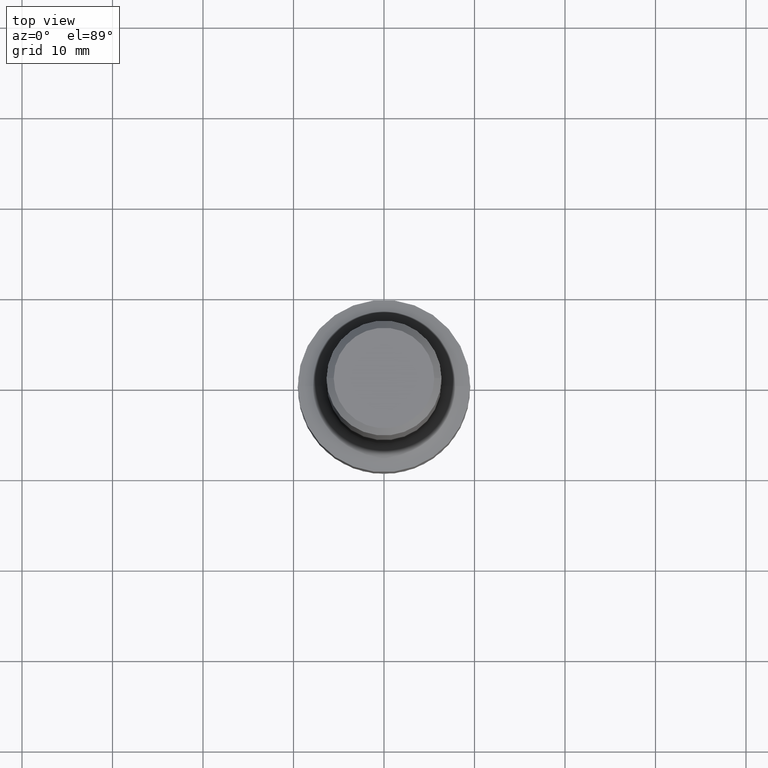
[diagram: clean part render]
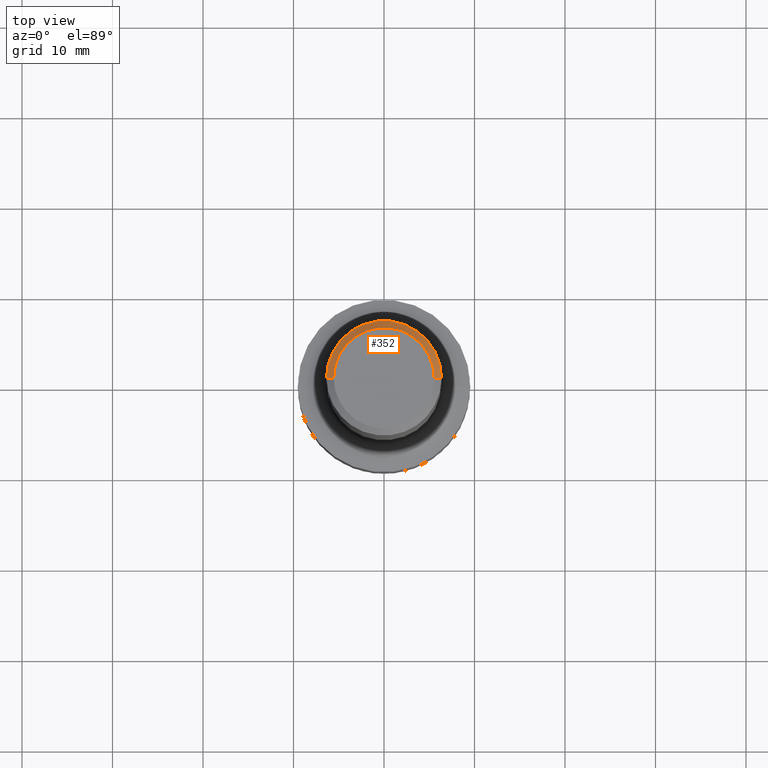
[diagram: same view with one face highlighted and labeled with its STEP entity id]
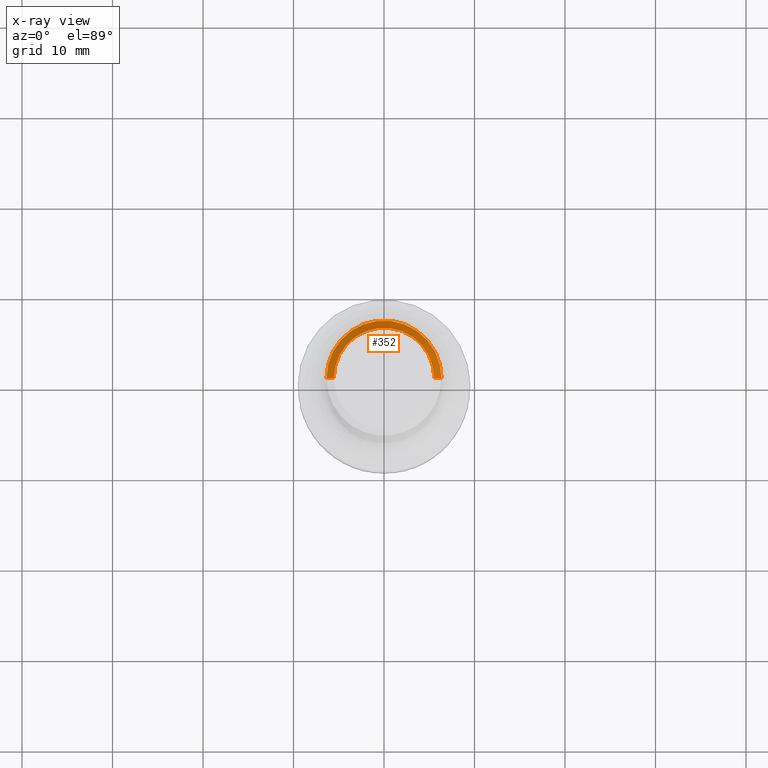
[diagram: x-ray of the same camera — body ghosted, the highlighted face saturated]
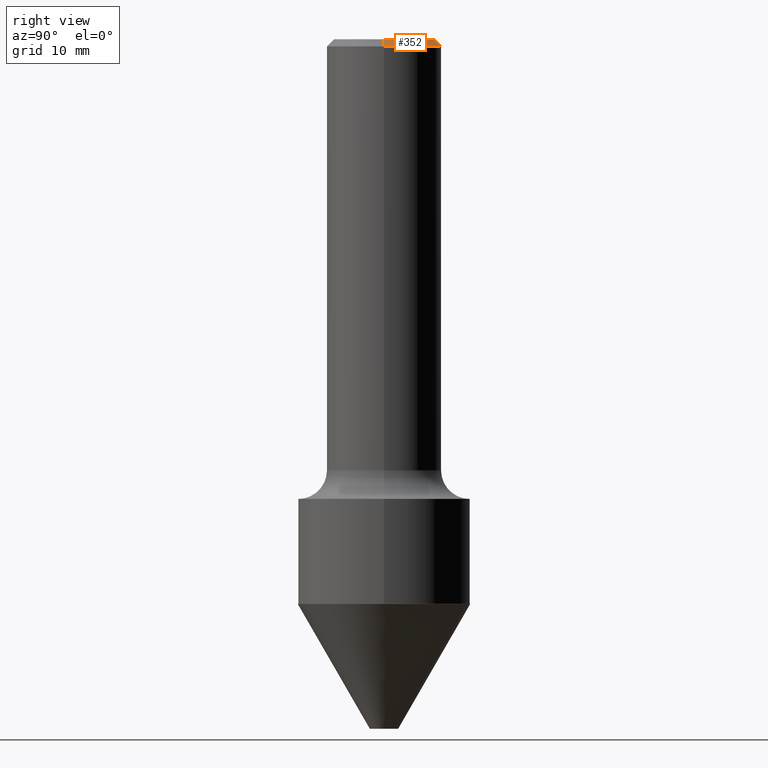
[diagram: same view with one face highlighted and labeled with its STEP entity id]
A machine part, top view. The second image highlights one B-rep face of the part: STEP entity #352.
The next image is the same camera in x-ray: the body ghosted, the highlighted face saturated — about 0% of this face is hidden behind the body in this view.
A second angle (right view) of the same face is appended — the face is thin or edge-on in the first view.
In plain terms, the highlighted conical surface has half-angle 45 deg.
Its self-contained STEP definition (entity closure, byte-faithful):
#2 = CARTESIAN_POINT ( 'NONE',  ( 7.629862675297676574E-31, -1.089342177719068640E-16, -0.03120000000000020673 ) ) ;
#8 = DIRECTION ( 'NONE',  ( -2.445468806185136597E-29, 3.491481338843145583E-15, 1.000000000000000000 ) ) ;
#26 = CARTESIAN_POINT ( 'NONE',  ( 7.629862675297676574E-31, -1.089342177719068640E-16, -0.03120000000000020673 ) ) ;
#53 = DIRECTION ( 'NONE',  ( -1.000000000000000000, 6.982962677686266711E-15, 0.000000000000000000 ) ) ;
#61 = EDGE_CURVE ( 'NONE', #246, #78, #75, .T. ) ;
#68 = AXIS2_PLACEMENT_3D ( 'NONE', #160, #122, #446 ) ;
#75 = CIRCLE ( 'NONE', #383, 0.2500000000000000000 ) ;
#76 = DIRECTION ( 'NONE',  ( 0.7071067811865450192, -7.319954787623246579E-15, -0.7071067811865500152 ) ) ;
#78 = VERTEX_POINT ( 'NONE', #128 ) ;
#84 = LINE ( 'NONE', #331, #457 ) ;
#115 = EDGE_CURVE ( 'NONE', #168, #246, #84, .T. ) ;
#122 = DIRECTION ( 'NONE',  ( -2.445468806185136597E-29, 3.491481338843145583E-15, 1.000000000000000000 ) ) ;
#128 = CARTESIAN_POINT ( 'NONE',  ( -0.2500000000000000000, 1.636806451649659727E-15, -0.03120000000000020673 ) ) ;
#131 = EDGE_CURVE ( 'NONE', #492, #78, #452, .T. ) ;
#154 = EDGE_LOOP ( 'NONE', ( #332, #293, #513, #188 ) ) ;
#160 = CARTESIAN_POINT ( 'NONE',  ( -1.871772216193327269E-46, 2.672394653685605698E-32, 7.654042494670949841E-18 ) ) ;
#163 = DIRECTION ( 'NONE',  ( 1.000000000000000000, -6.982962677686266711E-15, 0.000000000000000000 ) ) ;
#167 = DIRECTION ( 'NONE',  ( -0.7071067811865450192, 2.468850131082230634E-15, -0.7071067811865500152 ) ) ;
#168 = VERTEX_POINT ( 'NONE', #199 ) ;
#178 = CARTESIAN_POINT ( 'NONE',  ( 0.2500000000000000000, -1.824058717214789841E-15, -0.03120000000000020673 ) ) ;
#181 = EDGE_CURVE ( 'NONE', #168, #492, #437, .T. ) ;
#188 = ORIENTED_EDGE ( 'NONE', *, *, #131, .F. ) ;
#199 = CARTESIAN_POINT ( 'NONE',  ( 0.2187999999999999945, -1.662567839563600480E-15, 7.654042494682104827E-18 ) ) ;
#204 = CARTESIAN_POINT ( 'NONE',  ( -0.2500000000000000000, 1.636806451649659727E-15, -0.03120000000000020673 ) ) ;
#218 = FACE_OUTER_BOUND ( 'NONE', #154, .T. ) ;
#229 = AXIS2_PLACEMENT_3D ( 'NONE', #26, #426, #53 ) ;
#246 = VERTEX_POINT ( 'NONE', #178 ) ;
#293 = ORIENTED_EDGE ( 'NONE', *, *, #115, .T. ) ;
#331 = CARTESIAN_POINT ( 'NONE',  ( 0.2500000000000000000, -1.824058717214789841E-15, -0.03120000000000020673 ) ) ;
#332 = ORIENTED_EDGE ( 'NONE', *, *, #181, .F. ) ;
#352 = ADVANCED_FACE ( 'NONE', ( #218 ), #454, .T. ) ;
#366 = VECTOR ( 'NONE', #167, 39.37007874015748143 ) ;
#369 = CARTESIAN_POINT ( 'NONE',  ( -0.2187999999999999945, 1.582339342763707436E-15, 7.654042494660075270E-18 ) ) ;
#383 = AXIS2_PLACEMENT_3D ( 'NONE', #2, #8, #163 ) ;
#426 = DIRECTION ( 'NONE',  ( 2.445468806185136597E-29, -3.491481338843145583E-15, -1.000000000000000000 ) ) ;
#437 = CIRCLE ( 'NONE', #68, 0.2187999999999999945 ) ;
#446 = DIRECTION ( 'NONE',  ( 1.000000000000000000, -6.982962677686266711E-15, 4.876319244907601817E-29 ) ) ;
#452 = LINE ( 'NONE', #204, #366 ) ;
#454 = CONICAL_SURFACE ( 'NONE', #229, 0.2500000000000000000, 0.7853981633974447263 ) ;
#457 = VECTOR ( 'NONE', #76, 39.37007874015748143 ) ;
#492 = VERTEX_POINT ( 'NONE', #369 ) ;
#513 = ORIENTED_EDGE ( 'NONE', *, *, #61, .T. ) ;